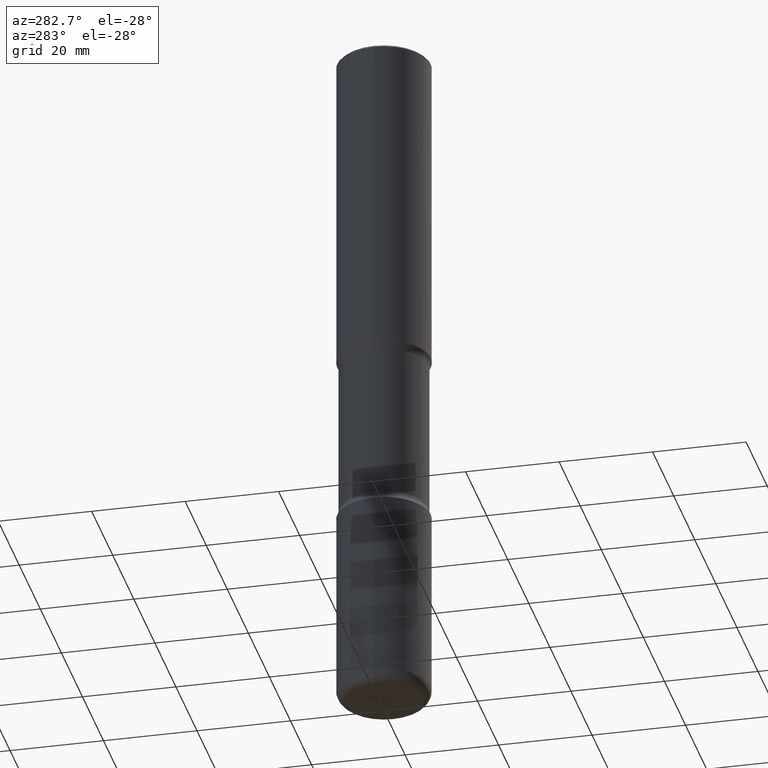
[diagram: clean part render]
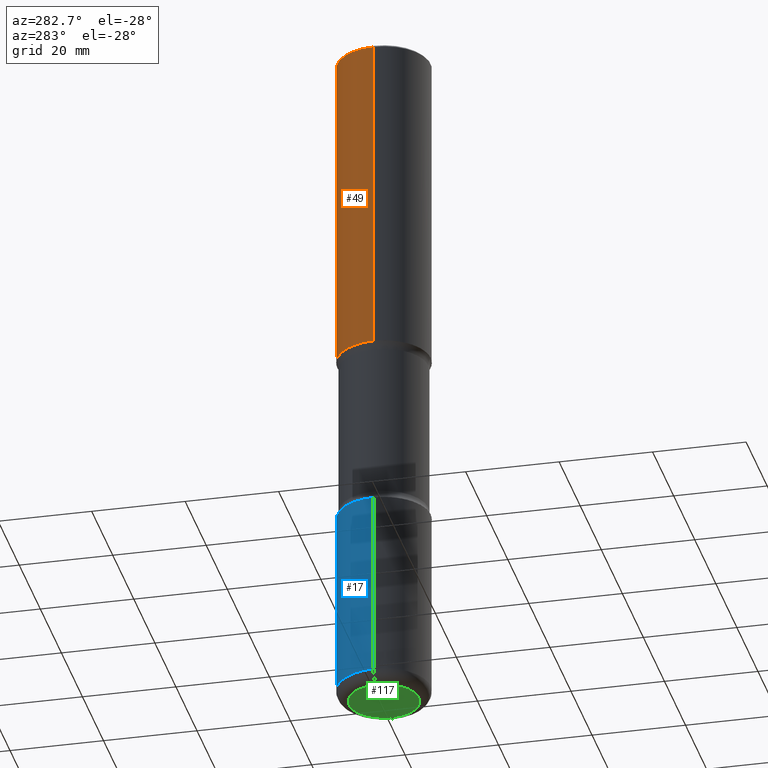
[diagram: same view with three faces highlighted in distinct colors, each labeled with its STEP entity id]
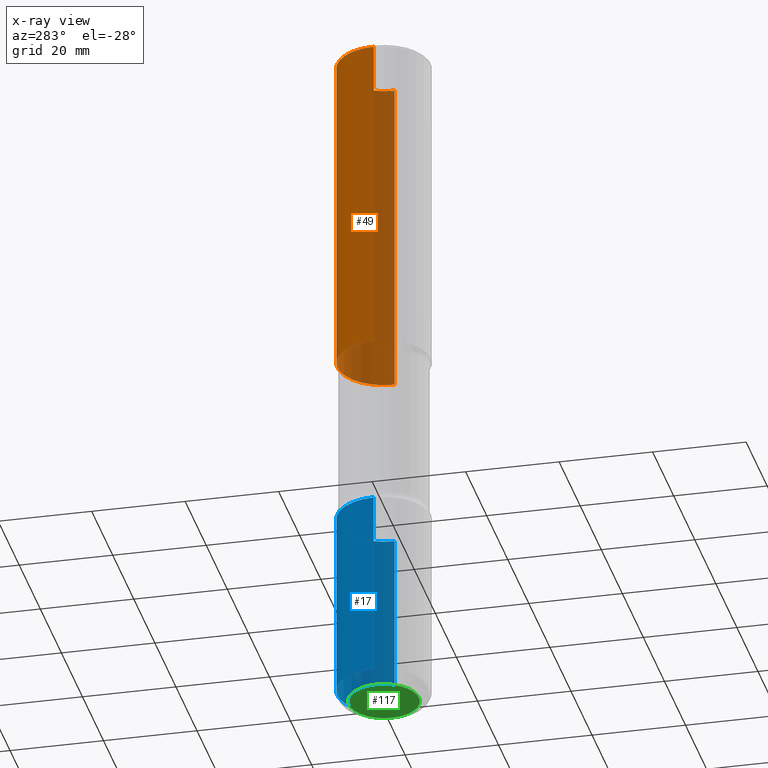
[diagram: x-ray of the same camera — body ghosted, the three highlighted faces saturated]
A machine part, auxiliary view with three faces highlighted in distinct colors.
The next image is the same camera in x-ray (body ghosted, the three faces saturated) — at least one of them is partly hidden behind the body in this view.
Their STEP definitions:

[orange] entity #49 — the highlighted cylindrical surface (partial cylindrical patch) has radius 10 mm, axis along (-0, 0, 1).
#11 = VECTOR ( 'NONE', #540, 39.37007874015748143 ) ;
#25 = CARTESIAN_POINT ( 'NONE',  ( -0.3937000000000002720, -2.048594773559823141E-15, -2.755899999999998240 ) ) ;
#34 = ORIENTED_EDGE ( 'NONE', *, *, #469, .T. ) ;
#49 = ADVANCED_FACE ( 'NONE', ( #62 ), #275, .T. ) ;
#51 = DIRECTION ( 'NONE',  ( -2.445468806185136597E-29, 3.491481338843145583E-15, 1.000000000000000000 ) ) ;
#52 = VERTEX_POINT ( 'NONE', #145 ) ;
#62 = FACE_OUTER_BOUND ( 'NONE', #427, .T. ) ;
#68 = DIRECTION ( 'NONE',  ( -2.445468806185136597E-29, 3.491481338843145583E-15, 1.000000000000000000 ) ) ;
#73 = AXIS2_PLACEMENT_3D ( 'NONE', #320, #51, #544 ) ;
#79 = EDGE_CURVE ( 'NONE', #137, #158, #466, .T. ) ;
#85 = EDGE_CURVE ( 'NONE', #113, #52, #291, .T. ) ;
#89 = ORIENTED_EDGE ( 'NONE', *, *, #85, .F. ) ;
#101 = CARTESIAN_POINT ( 'NONE',  ( 6.739467482965614869E-29, -9.622173421717819657E-15, -2.755899999999998240 ) ) ;
#113 = VERTEX_POINT ( 'NONE', #358 ) ;
#137 = VERTEX_POINT ( 'NONE', #316 ) ;
#145 = CARTESIAN_POINT ( 'NONE',  ( -0.3936999999999999389, 2.679362779428219524E-15, -0.02000000000000010103 ) ) ;
#158 = VERTEX_POINT ( 'NONE', #25 ) ;
#272 = AXIS2_PLACEMENT_3D ( 'NONE', #101, #340, #509 ) ;
#275 = CYLINDRICAL_SURFACE ( 'NONE', #73, 0.3937000000000001054 ) ;
#277 = CARTESIAN_POINT ( 'NONE',  ( -0.3937000000000001054, 2.797406750687515181E-15, -1.936584745033357016E-29 ) ) ;
#281 = CARTESIAN_POINT ( 'NONE',  ( 0.3937000000000001054, -2.749192406205084005E-15, 1.919750796630860452E-29 ) ) ;
#287 = ORIENTED_EDGE ( 'NONE', *, *, #79, .T. ) ;
#291 = CIRCLE ( 'NONE', #449, 0.3936999999999999389 ) ;
#316 = CARTESIAN_POINT ( 'NONE',  ( 0.3937000000000002164, -1.237136582792290287E-14, -2.755899999999998240 ) ) ;
#320 = CARTESIAN_POINT ( 'NONE',  ( 0.000000000000000000, 0.000000000000000000, 0.000000000000000000 ) ) ;
#323 = LINE ( 'NONE', #277, #431 ) ;
#340 = DIRECTION ( 'NONE',  ( -2.445468806185136597E-29, 3.491481338843145583E-15, 1.000000000000000000 ) ) ;
#358 = CARTESIAN_POINT ( 'NONE',  ( 0.3936999999999999389, -2.770807688499514945E-15, -0.02000000000000010103 ) ) ;
#427 = EDGE_LOOP ( 'NONE', ( #287, #34, #89, #441 ) ) ;
#428 = EDGE_CURVE ( 'NONE', #137, #113, #504, .T. ) ;
#431 = VECTOR ( 'NONE', #502, 39.37007874015748143 ) ;
#441 = ORIENTED_EDGE ( 'NONE', *, *, #428, .F. ) ;
#449 = AXIS2_PLACEMENT_3D ( 'NONE', #537, #68, #495 ) ;
#466 = CIRCLE ( 'NONE', #272, 0.3937000000000002164 ) ;
#469 = EDGE_CURVE ( 'NONE', #158, #52, #323, .T. ) ;
#495 = DIRECTION ( 'NONE',  ( 1.000000000000000000, -6.982962677686266711E-15, 0.000000000000000000 ) ) ;
#502 = DIRECTION ( 'NONE',  ( -2.445468806185136877E-29, 3.491481338843145188E-15, 1.000000000000000000 ) ) ;
#504 = LINE ( 'NONE', #281, #11 ) ;
#509 = DIRECTION ( 'NONE',  ( 1.000000000000000000, -6.982962677686265133E-15, 0.000000000000000000 ) ) ;
#537 = CARTESIAN_POINT ( 'NONE',  ( 4.890937612370298557E-31, -6.982962677686327354E-17, -0.02000000000000010103 ) ) ;
#540 = DIRECTION ( 'NONE',  ( -2.445468806185136877E-29, 3.491481338843145188E-15, 1.000000000000000000 ) ) ;
#544 = DIRECTION ( 'NONE',  ( 1.000000000000000000, -6.982962677686266711E-15, 4.876176775795935793E-29 ) ) ;

[blue] entity #17 — the highlighted cylindrical surface (partial cylindrical patch) has radius 10 mm, axis along (-0, 0, 1).
#5 = ORIENTED_EDGE ( 'NONE', *, *, #240, .T. ) ;
#17 = ADVANCED_FACE ( 'NONE', ( #305 ), #482, .T. ) ;
#28 = AXIS2_PLACEMENT_3D ( 'NONE', #261, #219, #271 ) ;
#42 = DIRECTION ( 'NONE',  ( -2.445468806185136877E-29, 3.491481338843145188E-15, 1.000000000000000000 ) ) ;
#67 = AXIS2_PLACEMENT_3D ( 'NONE', #387, #311, #438 ) ;
#90 = CARTESIAN_POINT ( 'NONE',  ( 0.3937000000000002720, -1.745740669421571411E-14, -4.212599999999998346 ) ) ;
#126 = CARTESIAN_POINT ( 'NONE',  ( -0.3937000000000003830, 2.797406750687517153E-15, -1.936584745033358137E-29 ) ) ;
#150 = CIRCLE ( 'NONE', #486, 0.3937000000000004940 ) ;
#159 = EDGE_CURVE ( 'NONE', #461, #350, #150, .T. ) ;
#201 = ORIENTED_EDGE ( 'NONE', *, *, #324, .F. ) ;
#216 = CIRCLE ( 'NONE', #67, 0.3937000000000002720 ) ;
#219 = DIRECTION ( 'NONE',  ( -2.445468806185136597E-29, 3.491481338843145583E-15, 1.000000000000000000 ) ) ;
#231 = CARTESIAN_POINT ( 'NONE',  ( 0.3937000000000008271, -2.302457368900111381E-14, -5.807099999999998374 ) ) ;
#240 = EDGE_CURVE ( 'NONE', #350, #444, #551, .T. ) ;
#247 = ORIENTED_EDGE ( 'NONE', *, *, #159, .T. ) ;
#261 = CARTESIAN_POINT ( 'NONE',  ( 0.000000000000000000, 0.000000000000000000, 0.000000000000000000 ) ) ;
#271 = DIRECTION ( 'NONE',  ( 1.000000000000000000, -6.982962677686266711E-15, 4.876176775795935793E-29 ) ) ;
#295 = EDGE_CURVE ( 'NONE', #461, #302, #433, .T. ) ;
#302 = VERTEX_POINT ( 'NONE', #90 ) ;
#305 = FACE_OUTER_BOUND ( 'NONE', #488, .T. ) ;
#311 = DIRECTION ( 'NONE',  ( -2.445468806185136597E-29, 3.491481338843145583E-15, 1.000000000000000000 ) ) ;
#314 = CARTESIAN_POINT ( 'NONE',  ( -0.3937000000000008271, -1.747797453210850398E-14, -5.807099999999998374 ) ) ;
#324 = EDGE_CURVE ( 'NONE', #302, #444, #216, .T. ) ;
#345 = DIRECTION ( 'NONE',  ( 1.000000000000000000, -6.982962677686269866E-15, 0.000000000000000000 ) ) ;
#350 = VERTEX_POINT ( 'NONE', #314 ) ;
#364 = VECTOR ( 'NONE', #559, 39.37007874015748143 ) ;
#375 = CARTESIAN_POINT ( 'NONE',  ( 0.3937000000000003830, -2.749192406205085978E-15, 1.919750796630861853E-29 ) ) ;
#382 = CARTESIAN_POINT ( 'NONE',  ( 1.420108190439770332E-28, -2.027538128279602429E-14, -5.807099999999998374 ) ) ;
#387 = CARTESIAN_POINT ( 'NONE',  ( 1.030178189293550378E-28, -1.470821428801063089E-14, -4.212599999999998346 ) ) ;
#391 = VECTOR ( 'NONE', #42, 39.37007874015748143 ) ;
#425 = DIRECTION ( 'NONE',  ( -2.445468806185136597E-29, 3.491481338843145583E-15, 1.000000000000000000 ) ) ;
#432 = ORIENTED_EDGE ( 'NONE', *, *, #295, .F. ) ;
#433 = LINE ( 'NONE', #375, #391 ) ;
#438 = DIRECTION ( 'NONE',  ( 1.000000000000000000, -6.982962677686269077E-15, 0.000000000000000000 ) ) ;
#444 = VERTEX_POINT ( 'NONE', #455 ) ;
#455 = CARTESIAN_POINT ( 'NONE',  ( -0.3937000000000002720, -1.469439103471581201E-14, -4.212599999999998346 ) ) ;
#461 = VERTEX_POINT ( 'NONE', #231 ) ;
#482 = CYLINDRICAL_SURFACE ( 'NONE', #28, 0.3937000000000003830 ) ;
#486 = AXIS2_PLACEMENT_3D ( 'NONE', #382, #425, #345 ) ;
#488 = EDGE_LOOP ( 'NONE', ( #247, #5, #201, #432 ) ) ;
#551 = LINE ( 'NONE', #126, #364 ) ;
#559 = DIRECTION ( 'NONE',  ( -2.445468806185136877E-29, 3.491481338843145188E-15, 1.000000000000000000 ) ) ;

[green] entity #117 — the highlighted planar face has unit normal (0, -0, -1).
#40 = CARTESIAN_POINT ( 'NONE',  ( -0.2953000000000005620, -1.799934243997356436E-14, -5.905499999999999972 ) ) ;
#48 = ORIENTED_EDGE ( 'NONE', *, *, #170, .F. ) ;
#71 = VERTEX_POINT ( 'NONE', #356 ) ;
#84 = AXIS2_PLACEMENT_3D ( 'NONE', #160, #462, #417 ) ;
#96 = DIRECTION ( 'NONE',  ( 2.438088387897960049E-29, -3.491481338843145188E-15, -1.000000000000000000 ) ) ;
#117 = ADVANCED_FACE ( 'NONE', ( #407 ), #229, .T. ) ;
#160 = CARTESIAN_POINT ( 'NONE',  ( 1.444171603492632270E-28, -2.061894304653819197E-14, -5.905499999999999972 ) ) ;
#166 = VERTEX_POINT ( 'NONE', #40 ) ;
#168 = CARTESIAN_POINT ( 'NONE',  ( 1.444171603492632270E-28, -2.061894304653819197E-14, -5.905499999999999972 ) ) ;
#170 = EDGE_CURVE ( 'NONE', #166, #71, #180, .T. ) ;
#180 = CIRCLE ( 'NONE', #215, 0.2953000000000005620 ) ;
#212 = DIRECTION ( 'NONE',  ( -2.445468806185136597E-29, 3.491481338843145583E-15, 1.000000000000000000 ) ) ;
#215 = AXIS2_PLACEMENT_3D ( 'NONE', #168, #212, #520 ) ;
#229 = PLANE ( 'NONE',  #430 ) ;
#273 = CIRCLE ( 'NONE', #84, 0.2953000000000005620 ) ;
#279 = DIRECTION ( 'NONE',  ( -1.000000000000000000, 6.982962677686265922E-15, -4.876176775795935793E-29 ) ) ;
#356 = CARTESIAN_POINT ( 'NONE',  ( 0.2953000000000005620, -2.268101192525895245E-14, -5.905499999999999972 ) ) ;
#407 = FACE_OUTER_BOUND ( 'NONE', #527, .T. ) ;
#417 = DIRECTION ( 'NONE',  ( 1.000000000000000000, -6.982962677686270655E-15, 0.000000000000000000 ) ) ;
#430 = AXIS2_PLACEMENT_3D ( 'NONE', #491, #96, #279 ) ;
#462 = DIRECTION ( 'NONE',  ( -2.445468806185136597E-29, 3.491481338843145583E-15, 1.000000000000000000 ) ) ;
#491 = CARTESIAN_POINT ( 'NONE',  ( -8.181060289173079042E-30, -4.247187677709596397E-14, -5.905499999999998195 ) ) ;
#515 = ORIENTED_EDGE ( 'NONE', *, *, #530, .F. ) ;
#520 = DIRECTION ( 'NONE',  ( 1.000000000000000000, -6.982962677686270655E-15, 0.000000000000000000 ) ) ;
#527 = EDGE_LOOP ( 'NONE', ( #515, #48 ) ) ;
#530 = EDGE_CURVE ( 'NONE', #71, #166, #273, .T. ) ;